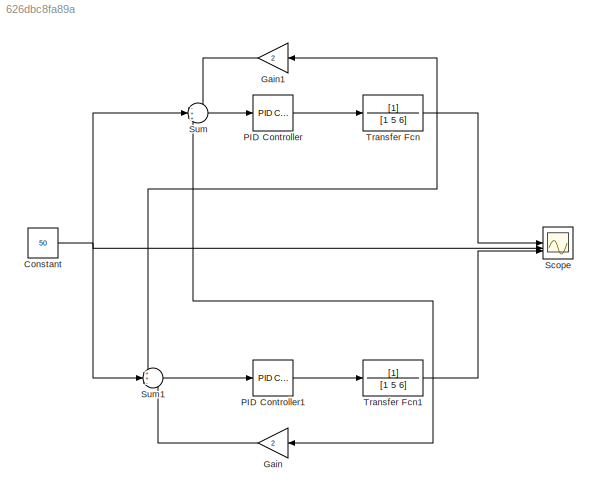
MODEL slx_626dbc8fa89a
KIND model
CONFIG AbsTol = auto
CONFIG EnableMultiTasking = off
CONFIG FixedStep = auto
CONFIG MaxStep = auto
CONFIG MinStep = auto
CONFIG RelTol = 1e-3
CONFIG SampleTimeConstraint = Unconstrained
CONFIG SolverName = VariableStepAuto
CONFIG StartTime = 0.0
CONFIG StopTime = 60
BLOCK [Constant] Constant
  Value = 50
BLOCK [Gain] Gain
  Gain = 2
BLOCK [Gain] Gain1
  Gain = 2
BLOCK [Reference] PID Controller  REF=slpidlib/PID Controller
  LibrarySourceBlock = simulink/Continuous/PID Controller
  SourceBlock = slpidlib/PID Controller
  SourceType = PID 1dof
BLOCK [Reference] PID Controller1  REF=slpidlib/PID Controller
  LibrarySourceBlock = simulink/Continuous/PID Controller
  SourceBlock = slpidlib/PID Controller
  SourceType = PID 1dof
BLOCK [Scope] Scope
  Floating = off
  NumInputPorts = 3
  ScopeSpecificationString = Simulink.scopes.TimeScopeBlockCfg('CurrentConfiguration', extmgr.ConfigurationSet(extmgr.Configuration('Core','General UI',true),extmgr.Configuration('Core','Source UI',true),extmgr.Configuration('Sources','WiredSimulink',true),extmgr.Configuration('Visuals','Time Domain',true,'SerializedDisplays',{struct('MinYLimReal','-100','MaxYLimReal','100','YLabelReal','','MinYLimMag','0.00000','MaxYLimMag',...<+1410ch>
BLOCK [Sum] Sum
  Inputs = -++
BLOCK [Sum] Sum1
  Inputs = ++-
BLOCK [TransferFcn] Transfer Fcn
  Denominator = [1 5 6]
BLOCK [TransferFcn] Transfer Fcn1
  Denominator = [1 5 6]
NET Constant:1 -> Scope:2, Sum1:2, Sum:2
LINE Gain1:1 -> Sum:1
LINE Gain:1 -> Sum1:3
LINE PID Controller1:1 -> Transfer Fcn1:1
LINE PID Controller:1 -> Transfer Fcn:1
LINE Sum1:1 -> PID Controller1:1
LINE Sum:1 -> PID Controller:1
NET Transfer Fcn1:1 -> Gain:1, Scope:3, Sum:3
NET Transfer Fcn:1 -> Gain1:1, Scope:1, Sum1:1
note: NET lines group one-source signal fan-out (src -> all destinations, sorted); 1:1 wires keep LINE
